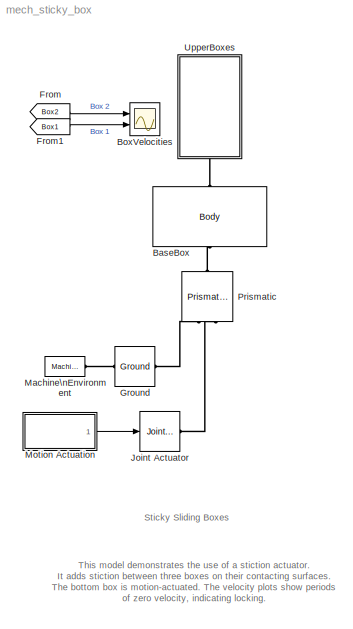
MODEL mech_sticky_box
KIND model
BLOCK [Reference] BaseBox  REF=mblibv1/Bodies/Body
  AttachedToCS = 1
  BodyColor = [0.5 0.5 0.5]
  CG = Left$CG$[0 0.5 0]$CS1$CS1$m$[0 0 0]$Euler X-Y-Z$deg$WORLD$false
  CGPos = [0 0.5 0]
  CGRot = [0 0 0]
  CS0Pos = []
  CS0Rot = []
  CS10Pos = [0 1 0]
  CS10Rot = [0 0 0]
  CS11Pos = []
  CS11Rot = []
  CS12Pos = []
  CS12Rot = []
  CS13Pos = []
  CS13Rot = []
  CS14Pos = []
  CS14Rot = []
  CS15Pos = []
  CS15Rot = []
  CS16Pos = []
  CS16Rot = []
  CS17Pos = []
  CS17Rot = []
  CS18Pos = []
  CS18Rot = []
  CS19Pos = []
  CS19Rot = []
  CS1Pos = [0 0 0]
  CS1Rot = [0 0 0]
  CS20Pos = []
  CS20Rot = []
  CS2Pos = [0 1 0]
  CS2Rot = [0 0 0]
  CS3Pos = [-2 0 2]
  CS3Rot = [0 0 0]
  CS4Pos = [2 0 2]
  CS4Rot = [0 0 0]
  CS5Pos = [2 0 -2]
  CS5Rot = [0 0 0]
  CS6Pos = [-2 0 -2]
  CS6Rot = [0 0 0]
  CS7Pos = [0 1 0]
  CS7Rot = [0 0 0]
  CS8Pos = [0 1 0]
  CS8Rot = [0 0 0]
  CS9Pos = [0 1 0]
  CS9Rot = [0 0 0]
  ClassName = Body
  Density = 1
  DensityUnits = kg/m^3
  DensityUse = false
  DialogClass = MechanicalBodyBlock
  DialogController = MECH.DynMechDlgSource
  GraphicsMode = 1
  GraphicsObj = []
  Inertia = [1 0 0;0 1.9 0;0 0 1]
  InertiaUnits = kg*m^2
  LConnTagsString = CS1
  LeftPortType = workingframe
  Mass = 1
  MassUnits = kg
  PhysicalDomain = mechanical
  Ports = [0, 0, 0, 0, 0, 1, 1]
  RConnTagsString = CS2
  RightPortType = workingframe
  Shape = Cylinder
  ShapeDims = [1 1]
  ShapeUnits = m
  ShapeUse = false
  SourceBlock = mblibv1/Bodies/Body
  SourceType = Body
  SubClassName = Unknown
  WorkingFrames = Left$CS1$[0 0 0]$ADJOINING$ADJOINING$m$[0 0 0]$Euler X-Y-Z$deg$WORLD$true#Right$CS2$[0 1 0]$CS1$CS1$m$[0 0 0]$Euler X-Y-Z$deg$WORLD$true#Right$CS3$[-2 0 2]$CS1$CS1$m$[0 0 0]$Euler X-Y-Z$deg$WORLD$false#Right$CS7$[0 1 0]$CS3$CS3$m$[0 0 0]$Euler X-Y-Z$deg$WORLD$false#Right$CS4$[2 0 2]$CS1$CS1$m$[0 0 0]$Euler X-Y-Z$deg$WORLD$false#Right$CS8$[0 1 0]$CS4$CS4$m$[0 0 0]$Euler X-Y-Z$deg$WORLD$false#Right$...<+253ch>  <repeated x3 — deduplicated; at blocks: BaseBox, Follower>
BLOCK [Scope] BoxVelocities
  DataFormat = StructureWithTime
  Floating = off
  NumInputPorts = 2
  Ports = [2]
  SampleTime = 0
  TimeRange = 10
  YMax = 0.4~1.5
  YMin = -0.4~-1.5
BLOCK [From] From
  CloseFcn = tagdialog Close
  GotoTag = Box2
  TagVisibility = global
BLOCK [From] From1
  CloseFcn = tagdialog Close
  GotoTag = Box1
  TagVisibility = global
BLOCK [Reference] Ground  REF=mblibv1/Bodies/Ground
  ClassName = Ground
  CoordPosition = [0 0 0]
  CoordPositionUnits = m
  DialogClass = GroundBlock
  DialogController = MECH.DynMechDlgSource
  FunctionWithSeparateData = off
  LeftPortType = env
  MachineId = [0 0]
  PhysicalDomain = Mechanical
  Ports = [0, 0, 0, 0, 0, 1, 1]
  RTWMemSecDataConstants = Inherit from model
  RTWMemSecDataInternal = Inherit from model
  RTWMemSecDataParameters = Inherit from model
  RTWMemSecFuncExecute = Inherit from model
  RTWMemSecFuncInitTerm = Inherit from model
  RightPortType = workingframe
  ShowEnvPort = on
  ShowPortLabels = FromPortIcon
  SourceBlock = mblibv1/Bodies/Ground
  SourceType = Ground
  StateVectorMgrId = -1
  SystemSampleTime = -1
  UserData = DataTag0
  UserDataPersistent = on
BLOCK [Reference] Joint Actuator  REF=mblibv1/Sensors & \nActuators/Joint Actuator
  AccelerationUnits = m/s^2
  ActiveIO = on
  ActuationStyle = Force
  AngleUnits = deg
  ArcAccelerationUnits = deg/s^2
  ArcVelocityUnits = deg/s
  ClassName = JointActuator
  CoordPositionUnits = m
  DialogClass = MechanicalActuatorBlock
  DialogController = MECH.DynMechDlgSource
  ForceUnits = N
  FunctionWithSeparateData = off
  PhysicalDomain = Mechanical
  PortType = blob
  Ports = [1, 0, 0, 0, 0, 0, 1]
  Primitive = P1
  RTWMemSecDataConstants = Inherit from model
  RTWMemSecDataInternal = Inherit from model
  RTWMemSecDataParameters = Inherit from model
  RTWMemSecFuncExecute = Inherit from model
  RTWMemSecFuncInitTerm = Inherit from model
  ReferenceFrame = Absolute (INERTIAL)
  ShowPortLabels = FromPortIcon
  SourceBlock = mblibv1/Sensors & \nActuators/Joint Actuator
  SourceType = Joint Actuator
  SystemSampleTime = -1
  TorqueUnits = N*m
  VelocityUnits = m/s
  Width = 1
BLOCK [Reference] Machine\nEnvironment  REF=mblibv1/Bodies/Machine\nEnvironment
  AnalysisType = Forward dynamics
  AngularAssemblyTolerance = 1e-3
  AngularAssemblyToleranceUnits = rad
  ClassName = Environment
  ConstraintAbsTolerance = 1e-4
  ConstraintRelTolerance = 1e-4
  ConstraintSolverType = Stabilizing
  DialogController = MECH.DialogSource
  DialogTemplateClass = MECH.MachineEnvironment
  Dimensionality = Auto-detect
  FunctionWithSeparateData = off
  Gravity = [0 -9.81 0]
  GravityAsSignal = off
  GravityUnits = m/s^2
  LinearAssemblyTolerance = 1e-3
  LinearAssemblyToleranceUnits = m
  PerturbationSize = 1e-5
  PhysicalDomain = Mechanical
  PortType = env
  Ports = [0, 0, 0, 0, 0, 0, 1]
  RTWMemSecDataConstants = Inherit from model
  RTWMemSecDataInternal = Inherit from model
  RTWMemSecDataParameters = Inherit from model
  RTWMemSecFuncExecute = Inherit from model
  RTWMemSecFuncInitTerm = Inherit from model
  RedundancyAnalysisTolerance = 1e-14
  RedundancyAnalysisToleranceType = Automatically select tolerance
  ShowPortLabels = FromPortIcon
  SourceBlock = mblibv1/Bodies/Machine\nEnvironment
  SourceType = Machine Environment
  StatePerturbationType = Fixed
  SyncWhenCopied = off
  SystemSampleTime = -1
  Tag = Factory ground
  UseRobustSingularityHandling = off
  VisualizeMachine = on
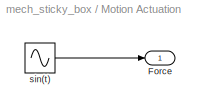
BLOCK [SubSystem] Motion Actuation
  FunctionWithSeparateData = off
  MaskHideContents = off
  MinAlgLoopOccurrences = off
  Opaque = off
  Ports = [0, 1]
  PropExecContextOutsideSubsystem = off
  RTWSystemCode = Auto
  RequestExecContextInheritance = off
BLOCK [Outport] Motion Actuation/Force
  IconDisplay = Port number
  OutDataType = sfix(16)
  OutScaling = 2^0
BLOCK [Sin] Motion Actuation/sin(t)
  Amplitude = 7.9
  Frequency = 3
  Ports = [0, 1]
  SampleTime = 0
BLOCK [Reference] Prismatic  REF=mblibv1/Joints/Prismatic
  ClassName = Joint
  CutJoint = off
  DialogClass = JointBlock
  DialogController = MECH.DynMechDlgSource
  LConnTagsString = __newl0|SA1
  LeftPortType = blob
  MarkAsCut = off
  NumSAPorts = 1
  P1Axis = [1 0 0]
  PhysicalDomain = mechanical
  Ports = [0, 0, 0, 0, 0, 2, 1]
  PrimitiveProps = P1$World$[1 0 0]$prismatic
  Primitives = prismatic
  RConnTagsString = __newr0
  RightPortType = blob
  SourceBlock = mblibv1/Joints/Prismatic
  SourceType = Prismatic
  SubClassName = Unknown
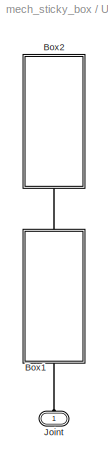
BLOCK [SubSystem] UpperBoxes
  FunctionWithSeparateData = off
  MaskHideContents = off
  MinAlgLoopOccurrences = off
  Opaque = off
  Ports = [0, 0, 0, 0, 0, 1]
  PropExecContextOutsideSubsystem = off
  RTWSystemCode = Auto
  RequestExecContextInheritance = off
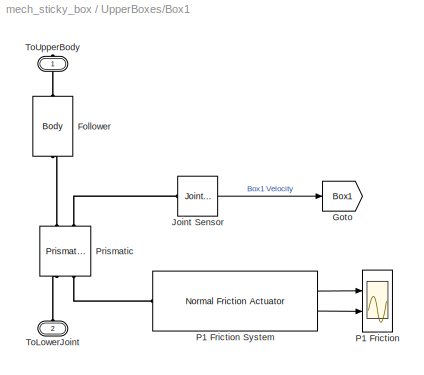
BLOCK [SubSystem] UpperBoxes/Box1
  FunctionWithSeparateData = off
  MaskHideContents = off
  MinAlgLoopOccurrences = off
  Opaque = off
  Ports = [0, 0, 0, 0, 0, 1, 1]
  PropExecContextOutsideSubsystem = off
  RTWSystemCode = Auto
  RequestExecContextInheritance = off
BLOCK [Reference] UpperBoxes/Box1/Follower  REF=mblibv1/Bodies/Body
  AttachedToCS = 1
  BodyColor = [0.5 0.5 0.5]
  CG = Left$CG$[0 0.5 0]$CS1$CS1$m$[0 0 0]$Euler X-Y-Z$deg$WORLD$false
  CGPos = [0 0.5 0]
  CGRot = [0 0 0]
  CS0Pos = []
  CS0Rot = []
  CS10Pos = [0 1 0]
  CS10Rot = [0 0 0]
  CS11Pos = []
  CS11Rot = []
  CS12Pos = []
  CS12Rot = []
  CS13Pos = []
  CS13Rot = []
  CS14Pos = []
  CS14Rot = []
  CS15Pos = []
  CS15Rot = []
  CS16Pos = []
  CS16Rot = []
  CS17Pos = []
  CS17Rot = []
  CS18Pos = []
  CS18Rot = []
  CS19Pos = []
  CS19Rot = []
  CS1Pos = [0 0 0]
  CS1Rot = [0 0 0]
  CS20Pos = []
  CS20Rot = []
  CS2Pos = [0 1 0]
  CS2Rot = [0 0 0]
  CS3Pos = [-2 0 2]
  CS3Rot = [0 0 0]
  CS4Pos = [2 0 2]
  CS4Rot = [0 0 0]
  CS5Pos = [2 0 -2]
  CS5Rot = [0 0 0]
  CS6Pos = [-2 0 -2]
  CS6Rot = [0 0 0]
  CS7Pos = [0 1 0]
  CS7Rot = [0 0 0]
  CS8Pos = [0 1 0]
  CS8Rot = [0 0 0]
  CS9Pos = [0 1 0]
  CS9Rot = [0 0 0]
  ClassName = Body
  Density = 1
  DensityUnits = kg/m^3
  DensityUse = false
  DialogClass = MechanicalBodyBlock
  DialogController = MECH.DynMechDlgSource
  GraphicsMode = 1
  GraphicsObj = []
  Inertia = [1 0 0;0 1.9 0;0 0 1]
  InertiaUnits = kg*m^2
  LConnTagsString = CS1
  LeftPortType = workingframe
  Mass = 1
  MassUnits = kg
  PhysicalDomain = mechanical
  Ports = [0, 0, 0, 0, 0, 1, 1]
  RConnTagsString = CS2
  RightPortType = workingframe
  Shape = Cylinder
  ShapeDims = [1 1]
  ShapeUnits = m
  ShapeUse = false
  SourceBlock = mblibv1/Bodies/Body
  SourceType = Body
  SubClassName = Unknown
BLOCK [Goto] UpperBoxes/Box1/Goto
  GotoTag = Box1
  TagVisibility = global
BLOCK [Reference] UpperBoxes/Box1/Joint Sensor  REF=mblibv1/Sensors & \nActuators/Joint Sensor
  Acceleration = off
  AccelerationUnits = m/s^2
  ActiveIO = on
  Angle = on
  AngleUnits = deg
  ArcAcceleration = off
  ArcAccelerationUnits = deg/s^2
  ArcVelocity = off
  ArcVelocityUnits = deg/s
  ClassName = JointSensor
  CoordPosition = off
  CoordPositionUnits = m
  DialogClass = MechanicalSensorBlock
  DialogController = MECH.DynMechDlgSource
  Force = off
  ForceUnits = N
  FunctionWithSeparateData = off
  Muxed = on
  OutputVector = [ 1 ]
  PhysicalDomain = Mechanical
  PortType = blob
  Ports = [0, 1, 0, 0, 0, 1]
  Pose = off
  Primitive = P1
  Quaternion = on
  QuaternionDDT = off
  QuaternionDT = off
  QuaternionUnits = off
  RTWMemSecDataConstants = Inherit from model
  RTWMemSecDataInternal = Inherit from model
  RTWMemSecDataParameters = Inherit from model
  RTWMemSecFuncExecute = Inherit from model
  RTWMemSecFuncInitTerm = Inherit from model
  ReactionForce = off
  ReactionForceUnits = N
  ReactionMoment = off
  ReactionMomentUnits = N*m
  ReactionReferenceFrame = Absolute (World)
  ReactionSensedSide = Base
  ReferenceFrame = Absolute (INERTIAL)
  ShowPortLabels = FromPortIcon
  SourceBlock = mblibv1/Sensors & \nActuators/Joint Sensor
  SourceType = Joint Sensor
  SystemSampleTime = -1
  Torque = off
  TorqueUnits = N*m
  Velocity = on
  VelocityUnits = m/s
  Width = 1
BLOCK [Scope] UpperBoxes/Box1/P1 Friction
  DataFormat = StructureWithTime
  Floating = off
  NumInputPorts = 2
  Ports = [2]
  SampleTime = 0
  SaveName = ScopeData1
  TimeRange = 10
  YMax = 50~0
  YMin = -50~-10
BLOCK [Reference] UpperBoxes/Box1/P1 Friction System  REF=mech_friction/Normal Friction Actuator  (lib defined in mdl_4ce20e129d6d)
  Ckinetic = 0.1
  Csforward = 0.055
  Csreverse = 0.055
  FunctionWithSeparateData = off
  Ports = [0, 2, 0, 0, 0, 1]
  RTWMemSecDataConstants = Inherit from model
  RTWMemSecDataInternal = Inherit from model
  RTWMemSecDataParameters = Inherit from model
  RTWMemSecFuncExecute = Inherit from model
  RTWMemSecFuncInitTerm = Inherit from model
  ShowPortLabels = FromPortIcon
  SourceBlock = mech_friction/Normal Friction Actuator
  SourceType = Normal Friction Actuator
  SystemSampleTime = -1
  primitive = P1
  sExtActuation = off
  sForces = on
  staticFF = 1.65
BLOCK [Reference] UpperBoxes/Box1/Prismatic  REF=mblibv1/Joints/Prismatic
  ClassName = Joint
  CutJoint = off
  DialogClass = JointBlock
  DialogController = MECH.DynMechDlgSource
  LConnTagsString = __newl0|SA1
  LeftPortType = blob
  MarkAsCut = off
  NumSAPorts = 2
  P1Axis = [1 0 0]
  PhysicalDomain = mechanical
  Ports = [0, 0, 0, 0, 0, 2, 2]
  PrimitiveProps = P1$World$[1 0 0]$prismatic
  Primitives = prismatic
  RConnTagsString = __newr0|SA1
  RightPortType = blob
  SourceBlock = mblibv1/Joints/Prismatic
  SourceType = Prismatic
  SubClassName = Unknown
BLOCK [PMIOPort] UpperBoxes/Box1/ToLowerJoint
  Port = 2
  Side = Left
BLOCK [PMIOPort] UpperBoxes/Box1/ToUpperBody
  Port = 1
  Side = Right
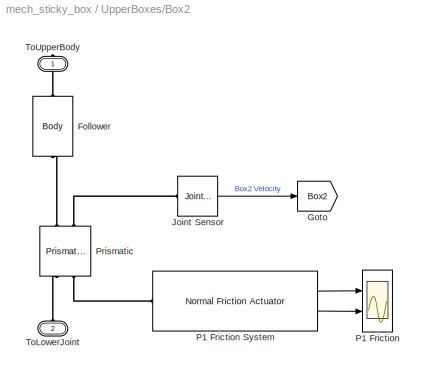
BLOCK [SubSystem] UpperBoxes/Box2
  FunctionWithSeparateData = off
  MaskHideContents = off
  MinAlgLoopOccurrences = off
  Opaque = off
  Ports = [0, 0, 0, 0, 0, 1, 1]
  PropExecContextOutsideSubsystem = off
  RTWSystemCode = Auto
  RequestExecContextInheritance = off
BLOCK [Reference] UpperBoxes/Box2/Follower  REF=mblibv1/Bodies/Body
  AttachedToCS = 1
  BodyColor = [0.5 0.5 0.5]
  CG = Left$CG$[0 0.4 0]$CS1$CS1$m$[0 0 0]$Euler X-Y-Z$deg$WORLD$false
  CGPos = [0 0.4 0]
  CGRot = [0 0 0]
  CS0Pos = []
  CS0Rot = []
  CS10Pos = [0 1 0]
  CS10Rot = [0 0 0]
  CS11Pos = []
  CS11Rot = []
  CS12Pos = []
  CS12Rot = []
  CS13Pos = []
  CS13Rot = []
  CS14Pos = []
  CS14Rot = []
  CS15Pos = []
  CS15Rot = []
  CS16Pos = []
  CS16Rot = []
  CS17Pos = []
  CS17Rot = []
  CS18Pos = []
  CS18Rot = []
  CS19Pos = []
  CS19Rot = []
  CS1Pos = [0 0 0]
  CS1Rot = [0 0 0]
  CS20Pos = []
  CS20Rot = []
  CS2Pos = [0 1 0]
  CS2Rot = [0 0 0]
  CS3Pos = [-2 0 2]
  CS3Rot = [0 0 0]
  CS4Pos = [2 0 2]
  CS4Rot = [0 0 0]
  CS5Pos = [2 0 -2]
  CS5Rot = [0 0 0]
  CS6Pos = [-2 0 -2]
  CS6Rot = [0 0 0]
  CS7Pos = [0 1 0]
  CS7Rot = [0 0 0]
  CS8Pos = [0 1 0]
  CS8Rot = [0 0 0]
  CS9Pos = [0 1 0]
  CS9Rot = [0 0 0]
  ClassName = Body
  Density = 1
  DensityUnits = kg/m^3
  DensityUse = false
  DialogClass = MechanicalBodyBlock
  DialogController = MECH.DynMechDlgSource
  GraphicsMode = 1
  GraphicsObj = []
  Inertia = [1 0 0;0 1.9 0;0 0 1]
  InertiaUnits = kg*m^2
  LConnTagsString = CS1
  LeftPortType = workingframe
  Mass = 2
  MassUnits = kg
  PhysicalDomain = mechanical
  Ports = [0, 0, 0, 0, 0, 1, 1]
  RConnTagsString = CS2
  RightPortType = workingframe
  Shape = Cylinder
  ShapeDims = [1 1]
  ShapeUnits = m
  ShapeUse = false
  SourceBlock = mblibv1/Bodies/Body
  SourceType = Body
  SubClassName = Unknown
BLOCK [Goto] UpperBoxes/Box2/Goto
  GotoTag = Box2
  TagVisibility = global
BLOCK [Reference] UpperBoxes/Box2/Joint Sensor  REF=mblibv1/Sensors & \nActuators/Joint Sensor
  Acceleration = off
  AccelerationUnits = m/s^2
  ActiveIO = on
  Angle = on
  AngleUnits = deg
  ArcAcceleration = off
  ArcAccelerationUnits = deg/s^2
  ArcVelocity = off
  ArcVelocityUnits = deg/s
  ClassName = JointSensor
  CoordPosition = off
  CoordPositionUnits = m
  DialogClass = MechanicalSensorBlock
  DialogController = MECH.DynMechDlgSource
  Force = off
  ForceUnits = N
  FunctionWithSeparateData = off
  Muxed = on
  OutputVector = [ 1 ]
  PhysicalDomain = Mechanical
  PortType = blob
  Ports = [0, 1, 0, 0, 0, 1]
  Pose = off
  Primitive = P1
  Quaternion = on
  QuaternionDDT = off
  QuaternionDT = off
  QuaternionUnits = off
  RTWMemSecDataConstants = Inherit from model
  RTWMemSecDataInternal = Inherit from model
  RTWMemSecDataParameters = Inherit from model
  RTWMemSecFuncExecute = Inherit from model
  RTWMemSecFuncInitTerm = Inherit from model
  ReactionForce = off
  ReactionForceUnits = N
  ReactionMoment = off
  ReactionMomentUnits = N*m
  ReactionReferenceFrame = Absolute (World)
  ReactionSensedSide = Base
  ReferenceFrame = Absolute (INERTIAL)
  ShowPortLabels = FromPortIcon
  SourceBlock = mblibv1/Sensors & \nActuators/Joint Sensor
  SourceType = Joint Sensor
  SystemSampleTime = -1
  Torque = off
  TorqueUnits = N*m
  Velocity = on
  VelocityUnits = m/s
  Width = 1
BLOCK [Scope] UpperBoxes/Box2/P1 Friction
  DataFormat = StructureWithTime
  Floating = off
  NumInputPorts = 2
  Ports = [2]
  SampleTime = 0
  SaveName = ScopeData1
  TimeRange = 10
  YMax = 50~0
  YMin = -50~-10
BLOCK [Reference] UpperBoxes/Box2/P1 Friction System  REF=mech_friction/Normal Friction Actuator  (lib defined in mdl_4ce20e129d6d)
  Ckinetic = 0.1
  Csforward = 0.055
  Csreverse = 0.055
  FunctionWithSeparateData = off
  Ports = [0, 2, 0, 0, 0, 1]
  RTWMemSecDataConstants = Inherit from model
  RTWMemSecDataInternal = Inherit from model
  RTWMemSecDataParameters = Inherit from model
  RTWMemSecFuncExecute = Inherit from model
  RTWMemSecFuncInitTerm = Inherit from model
  ShowPortLabels = FromPortIcon
  SourceBlock = mech_friction/Normal Friction Actuator
  SourceType = Normal Friction Actuator
  SystemSampleTime = -1
  primitive = P1
  sExtActuation = off
  sForces = on
  staticFF = 1.63
BLOCK [Reference] UpperBoxes/Box2/Prismatic  REF=mblibv1/Joints/Prismatic
  ClassName = Joint
  CutJoint = off
  DialogClass = JointBlock
  DialogController = MECH.DynMechDlgSource
  LConnTagsString = __newl0|SA1
  LeftPortType = blob
  MarkAsCut = off
  NumSAPorts = 2
  P1Axis = [1 0 0]
  PhysicalDomain = mechanical
  Ports = [0, 0, 0, 0, 0, 2, 2]
  PrimitiveProps = P1$World$[1 0 0]$prismatic
  Primitives = prismatic
  RConnTagsString = __newr0|SA1
  RightPortType = blob
  SourceBlock = mblibv1/Joints/Prismatic
  SourceType = Prismatic
  SubClassName = Unknown
BLOCK [PMIOPort] UpperBoxes/Box2/ToLowerJoint
  Port = 2
  Side = Left
BLOCK [PMIOPort] UpperBoxes/Box2/ToUpperBody
  Port = 1
  Side = Right
BLOCK [PMIOPort] UpperBoxes/Joint
  Port = 1
  Side = Left
ANNOTATION (root): Sticky Sliding Boxes
ANNOTATION (root): This model demonstrates the use of a stiction actuator. \nIt adds stiction between three boxes on their contacting surfaces.\nThe bottom box is motion-actuated. The velocity plots show periods\nof zero velocity, indicating locking.
LINE From1:1 -> BoxVelocities:2
LINE From:1 -> BoxVelocities:1
LINE Motion Actuation/sin(t):1 -> Motion Actuation/Force:1
LINE Motion Actuation:1 -> Joint Actuator:1
LINE UpperBoxes/Box1/Joint Sensor:1 -> UpperBoxes/Box1/Goto:1
LINE UpperBoxes/Box1/P1 Friction System:1 -> UpperBoxes/Box1/P1 Friction:1
LINE UpperBoxes/Box1/P1 Friction System:2 -> UpperBoxes/Box1/P1 Friction:2
LINE UpperBoxes/Box2/Joint Sensor:1 -> UpperBoxes/Box2/Goto:1
LINE UpperBoxes/Box2/P1 Friction System:1 -> UpperBoxes/Box2/P1 Friction:1
LINE UpperBoxes/Box2/P1 Friction System:2 -> UpperBoxes/Box2/P1 Friction:2
PLINE BaseBox:LConn1 -- Prismatic:RConn1
PLINE BaseBox:RConn1 -- UpperBoxes:LConn1
PLINE Ground:LConn1 -- Machine\nEnvironment:RConn1
PLINE Ground:RConn1 -- Prismatic:LConn1
PLINE Joint Actuator:RConn1 -- Prismatic:LConn2
PLINE UpperBoxes/Box1/Follower:LConn1 -- UpperBoxes/Box1/Prismatic:RConn1
PLINE UpperBoxes/Box1/Follower:RConn1 -- UpperBoxes/Box1/ToUpperBody:RConn1
PLINE UpperBoxes/Box1/Joint Sensor:LConn1 -- UpperBoxes/Box1/Prismatic:RConn2
PLINE UpperBoxes/Box1/P1 Friction System:LConn1 -- UpperBoxes/Box1/Prismatic:LConn2
PLINE UpperBoxes/Box1/Prismatic:LConn1 -- UpperBoxes/Box1/ToLowerJoint:RConn1
PLINE UpperBoxes/Box1:LConn1 -- UpperBoxes/Joint:RConn1
PLINE UpperBoxes/Box1:RConn1 -- UpperBoxes/Box2:LConn1
PLINE UpperBoxes/Box2/Follower:LConn1 -- UpperBoxes/Box2/Prismatic:RConn1
PLINE UpperBoxes/Box2/Follower:RConn1 -- UpperBoxes/Box2/ToUpperBody:RConn1
PLINE UpperBoxes/Box2/Joint Sensor:LConn1 -- UpperBoxes/Box2/Prismatic:RConn2
PLINE UpperBoxes/Box2/P1 Friction System:LConn1 -- UpperBoxes/Box2/Prismatic:LConn2
PLINE UpperBoxes/Box2/Prismatic:LConn1 -- UpperBoxes/Box2/ToLowerJoint:RConn1
